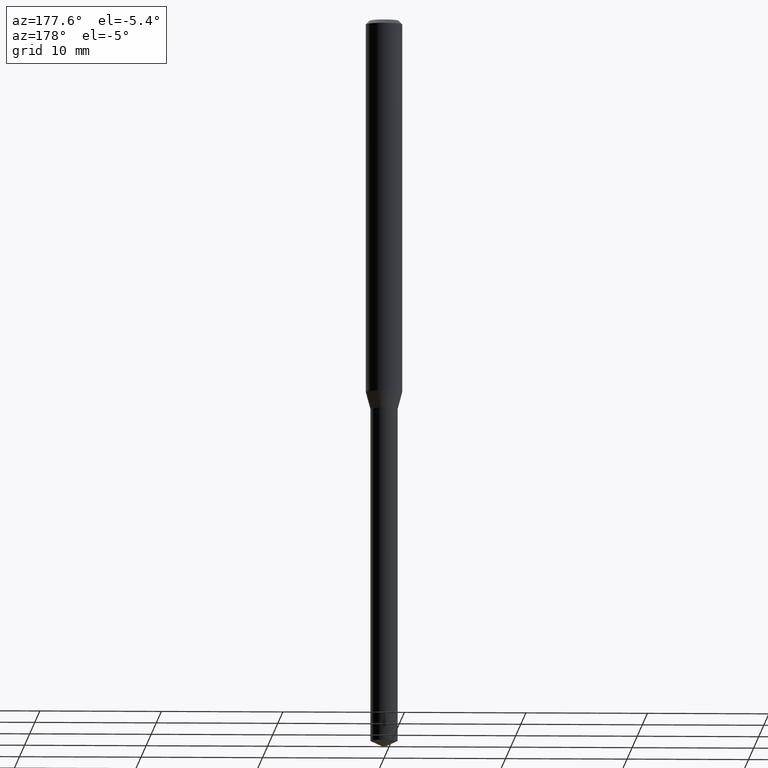
[diagram: clean part render]
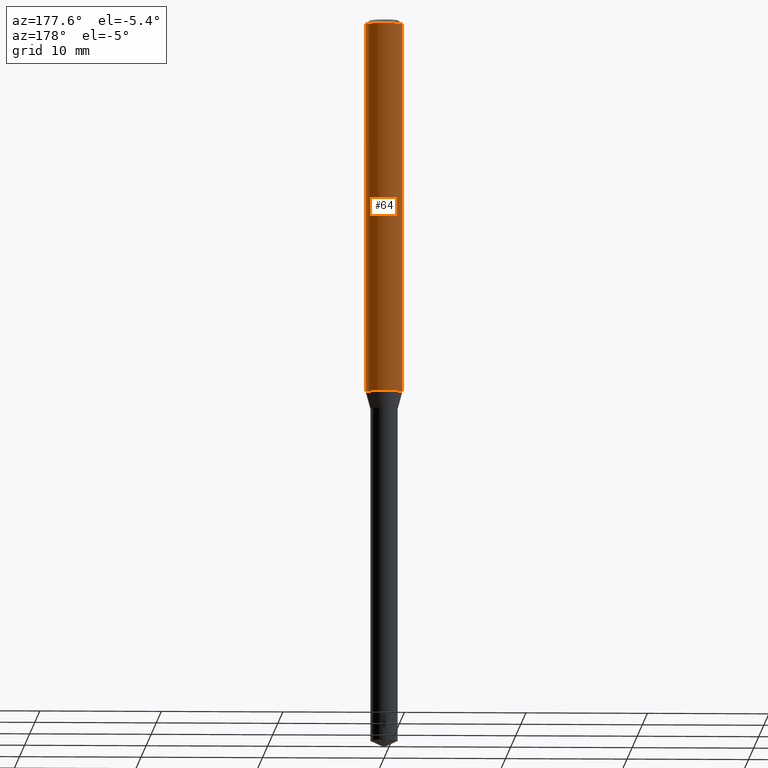
[diagram: same view with one face highlighted and labeled with its STEP entity id]
A machine part, auxiliary view. The second image highlights one B-rep face of the part: STEP entity #64.
In plain terms, the highlighted cylindrical surface (edge-blend (fillet) strip) has radius 1.4999 mm, axis along (-0, 0, 1).
Its self-contained STEP definition (entity closure, byte-faithful):
#59 = DIRECTION ( 'NONE',  ( -2.445468806185136597E-29, 3.491481338843145583E-15, 1.000000000000000000 ) ) ;
#64 = ADVANCED_FACE ( 'NONE', ( #69 ), #245, .T. ) ;
#69 = FACE_OUTER_BOUND ( 'NONE', #271, .T. ) ;
#120 = CARTESIAN_POINT ( 'NONE',  ( -0.05905000000000007465, 4.195754854663396902E-16, -2.904631170795525395E-30 ) ) ;
#125 = AXIS2_PLACEMENT_3D ( 'NONE', #179, #59, #251 ) ;
#143 = DIRECTION ( 'NONE',  ( -2.445468806185136597E-29, 3.491481338843145583E-15, 1.000000000000000000 ) ) ;
#156 = EDGE_CURVE ( 'NONE', #470, #310, #297, .T. ) ;
#179 = CARTESIAN_POINT ( 'NONE',  ( 0.000000000000000000, 0.000000000000000000, 0.000000000000000000 ) ) ;
#188 = EDGE_CURVE ( 'NONE', #286, #207, #274, .T. ) ;
#201 = DIRECTION ( 'NONE',  ( -2.445468806185136877E-29, 3.491481338843145188E-15, 1.000000000000000000 ) ) ;
#207 = VERTEX_POINT ( 'NONE', #235 ) ;
#213 = AXIS2_PLACEMENT_3D ( 'NONE', #481, #143, #334 ) ;
#221 = DIRECTION ( 'NONE',  ( -2.445468806185136597E-29, 3.491481338843145583E-15, 1.000000000000000000 ) ) ;
#228 = CARTESIAN_POINT ( 'NONE',  ( 0.05904999999999999832, -4.535783407291118600E-16, -0.01181000000000007044 ) ) ;
#234 = CARTESIAN_POINT ( 'NONE',  ( 0.05905000000000007465, -4.123439461173745750E-16, 2.879382386107504074E-30 ) ) ;
#235 = CARTESIAN_POINT ( 'NONE',  ( -0.05904999999999999832, -1.708241915808465850E-15, -0.01181000000000007044 ) ) ;
#245 = CYLINDRICAL_SURFACE ( 'NONE', #125, 0.05905000000000007465 ) ;
#251 = DIRECTION ( 'NONE',  ( 1.000000000000000000, -6.982962677686266711E-15, 4.876176775795936353E-29 ) ) ;
#261 = AXIS2_PLACEMENT_3D ( 'NONE', #450, #221, #377 ) ;
#265 = EDGE_CURVE ( 'NONE', #310, #207, #311, .T. ) ;
#271 = EDGE_LOOP ( 'NONE', ( #315, #355, #488, #324 ) ) ;
#274 = CIRCLE ( 'NONE', #261, 0.05904999999999999832 ) ;
#286 = VERTEX_POINT ( 'NONE', #228 ) ;
#297 = CIRCLE ( 'NONE', #213, 0.05905000000000015098 ) ;
#303 = EDGE_CURVE ( 'NONE', #470, #286, #424, .T. ) ;
#310 = VERTEX_POINT ( 'NONE', #354 ) ;
#311 = LINE ( 'NONE', #120, #447 ) ;
#315 = ORIENTED_EDGE ( 'NONE', *, *, #156, .T. ) ;
#324 = ORIENTED_EDGE ( 'NONE', *, *, #303, .F. ) ;
#325 = CARTESIAN_POINT ( 'NONE',  ( 0.05905000000000015098, -4.626744354055249850E-15, -1.207052250588358744 ) ) ;
#334 = DIRECTION ( 'NONE',  ( 1.000000000000000000, -6.982962677686271444E-15, 0.000000000000000000 ) ) ;
#354 = CARTESIAN_POINT ( 'NONE',  ( -0.05905000000000015098, -3.794824922471535437E-15, -1.207052250588358744 ) ) ;
#355 = ORIENTED_EDGE ( 'NONE', *, *, #265, .T. ) ;
#377 = DIRECTION ( 'NONE',  ( 1.000000000000000000, -6.982962677686266711E-15, 0.000000000000000000 ) ) ;
#424 = LINE ( 'NONE', #234, #458 ) ;
#447 = VECTOR ( 'NONE', #201, 39.37007874015748143 ) ;
#450 = CARTESIAN_POINT ( 'NONE',  ( 2.888098660104663766E-31, -4.123439461173779647E-17, -0.01181000000000007044 ) ) ;
#458 = VECTOR ( 'NONE', #463, 39.37007874015748143 ) ;
#463 = DIRECTION ( 'NONE',  ( -2.445468806185136877E-29, 3.491481338843145188E-15, 1.000000000000000000 ) ) ;
#470 = VERTEX_POINT ( 'NONE', #325 ) ;
#481 = CARTESIAN_POINT ( 'NONE',  ( 2.951808626249396333E-29, -4.214400407937874930E-15, -1.207052250588358744 ) ) ;
#488 = ORIENTED_EDGE ( 'NONE', *, *, #188, .F. ) ;